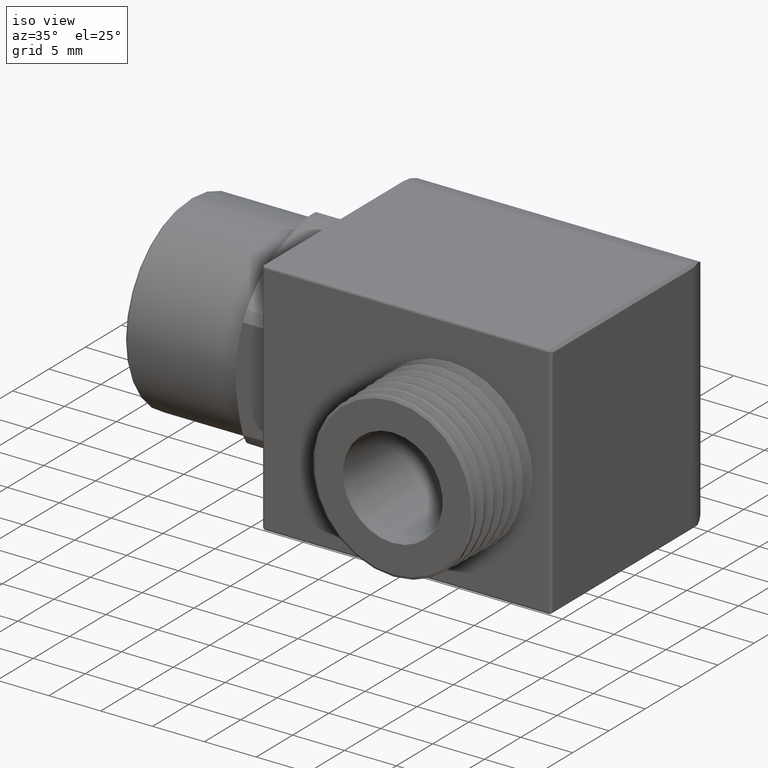
[diagram: clean part render]
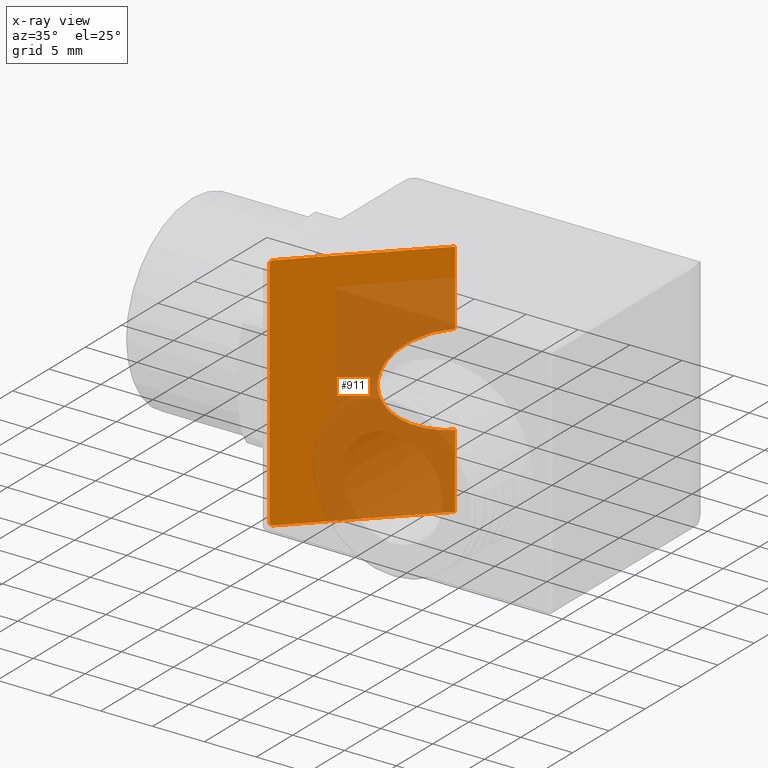
[diagram: x-ray — body ghosted, one internal face saturated and labeled with its STEP entity id]
A machine part, iso view, then the same camera in x-ray: the body is ghosted and one INTERNAL B-rep face — a face not visible from any outside direction — is saturated and labeled: STEP entity #911.
In plain terms, the highlighted planar face has unit normal (-0.7071, 0.7071, 0).
Its self-contained STEP definition (entity closure, byte-faithful):
#760 = VERTEX_POINT ( 'NONE', #2486 ) ;
#770 = EDGE_CURVE ( 'NONE', #771, #760, #2518, .T. ) ;
#771 = VERTEX_POINT ( 'NONE', #2520 ) ;
#911 = ADVANCED_FACE ( 'NONE', ( #2769 ), #2768, .T. ) ;
#912 = VERTEX_POINT ( 'NONE', #2763 ) ;
#914 = EDGE_CURVE ( 'NONE', #921, #760, #2762, .T. ) ;
#918 = VERTEX_POINT ( 'NONE', #2809 ) ;
#920 = EDGE_CURVE ( 'NONE', #964, #918, #2804, .T. ) ;
#921 = VERTEX_POINT ( 'NONE', #2800 ) ;
#922 = ORIENTED_EDGE ( 'NONE', *, *, #914, .F. ) ;
#923 = ORIENTED_EDGE ( 'NONE', *, *, #770, .T. ) ;
#924 = VERTEX_POINT ( 'NONE', #2799 ) ;
#925 = EDGE_CURVE ( 'NONE', #924, #921, #2798, .T. ) ;
#951 = EDGE_LOOP ( 'NONE', ( #986, #923, #922, #953, #959, #963, #970, #954 ) ) ;
#953 = ORIENTED_EDGE ( 'NONE', *, *, #925, .F. ) ;
#954 = ORIENTED_EDGE ( 'NONE', *, *, #955, .T. ) ;
#955 = EDGE_CURVE ( 'NONE', #961, #912, #2862, .T. ) ;
#959 = ORIENTED_EDGE ( 'NONE', *, *, #962, .F. ) ;
#960 = EDGE_CURVE ( 'NONE', #961, #918, #2851, .T. ) ;
#961 = VERTEX_POINT ( 'NONE', #2850 ) ;
#962 = EDGE_CURVE ( 'NONE', #964, #924, #2878, .T. ) ;
#963 = ORIENTED_EDGE ( 'NONE', *, *, #920, .T. ) ;
#964 = VERTEX_POINT ( 'NONE', #2880 ) ;
#965 = EDGE_CURVE ( 'NONE', #771, #912, #2879, .T. ) ;
#970 = ORIENTED_EDGE ( 'NONE', *, *, #960, .F. ) ;
#986 = ORIENTED_EDGE ( 'NONE', *, *, #965, .F. ) ;
#2486 = CARTESIAN_POINT ( 'NONE',  ( 0.1051000000000044700, 0.0000000000000000000, -0.1732500000000000700 ) ) ;
#2514 = CARTESIAN_POINT ( 'NONE',  ( 0.1051000000000044700, 0.0000000000000000000, -0.1732500000000000700 ) ) ;
#2515 = CARTESIAN_POINT ( 'NONE',  ( -0.2413999999999955600, -0.3464999999999999700, -0.1732499999999999600 ) ) ;
#2516 = CARTESIAN_POINT ( 'NONE',  ( -0.2413999999999955600, -0.3464999999999999700, 0.1732500000000000700 ) ) ;
#2517 = CARTESIAN_POINT ( 'NONE',  ( 0.1051000000000044700, 0.0000000000000000000, 0.1732499999999999900 ) ) ;
#2518 =( BOUNDED_CURVE ( )  B_SPLINE_CURVE ( 3, ( #2517, #2516, #2515, #2514 ),
 .UNSPECIFIED., .F., .T. ) 
 B_SPLINE_CURVE_WITH_KNOTS ( ( 4, 4 ),
 ( 4.712388980384689700, 7.853981633974482800 ),
 .UNSPECIFIED. ) 
 CURVE ( )  GEOMETRIC_REPRESENTATION_ITEM ( )  RATIONAL_B_SPLINE_CURVE ( ( 1.000000000000000000, 0.3333333333333333100, 0.3333333333333333100, 1.000000000000000000 ) ) 
 REPRESENTATION_ITEM ( '' )  );
#2520 = CARTESIAN_POINT ( 'NONE',  ( 0.1051000000000044700, 0.0000000000000000000, 0.1732499999999999900 ) ) ;
#2759 = DIRECTION ( 'NONE',  ( 0.0000000000000000000, 0.0000000000000000000, 1.000000000000000000 ) ) ;
#2760 = VECTOR ( 'NONE', #2759, 39.37007874015748100 ) ;
#2761 = CARTESIAN_POINT ( 'NONE',  ( 0.1051000000000044700, 0.0000000000000000000, -0.4553937007874016000 ) ) ;
#2762 = LINE ( 'NONE', #2761, #2760 ) ;
#2763 = CARTESIAN_POINT ( 'NONE',  ( 0.1051000000000045000, 6.829619984160658000E-017, 0.4550000000000000200 ) ) ;
#2764 = DIRECTION ( 'NONE',  ( -0.7071067811865474600, -0.7071067811865474600, 0.0000000000000000000 ) ) ;
#2765 = DIRECTION ( 'NONE',  ( -0.7071067811865475700, 0.7071067811865475700, 0.0000000000000000000 ) ) ;
#2766 = CARTESIAN_POINT ( 'NONE',  ( 0.1051000000000044700, 0.0000000000000000000, -0.4553937007874016000 ) ) ;
#2767 = AXIS2_PLACEMENT_3D ( 'NONE', #2766, #2765, #2764 ) ;
#2768 = PLANE ( 'NONE',  #2767 ) ;
#2769 = FACE_OUTER_BOUND ( 'NONE', #951, .T. ) ;
#2795 = DIRECTION ( 'NONE',  ( 0.7071067811865474600, 0.7071067811865474600, 0.0000000000000000000 ) ) ;
#2796 = VECTOR ( 'NONE', #2795, 39.37007874015748900 ) ;
#2797 = CARTESIAN_POINT ( 'NONE',  ( 0.6251333333333355400, 0.5200333333333311300, -0.4550000000000000200 ) ) ;
#2798 = LINE ( 'NONE', #2797, #2796 ) ;
#2799 = CARTESIAN_POINT ( 'NONE',  ( -0.2998999999999999400, -0.4050000000000044100, -0.4550000000000000200 ) ) ;
#2800 = CARTESIAN_POINT ( 'NONE',  ( 0.1051000000000045000, 6.829619984160658000E-017, -0.4550000000000000200 ) ) ;
#2801 = DIRECTION ( 'NONE',  ( 0.0000000000000000000, 0.0000000000000000000, 1.000000000000000000 ) ) ;
#2802 = VECTOR ( 'NONE', #2801, 39.37007874015748100 ) ;
#2803 = CARTESIAN_POINT ( 'NONE',  ( -0.3098999999999999500, -0.4150000000000044800, 0.4550000000000000200 ) ) ;
#2804 = LINE ( 'NONE', #2803, #2802 ) ;
#2809 = CARTESIAN_POINT ( 'NONE',  ( -0.3098999999999999500, -0.4150000000000043700, 0.4449999999999999500 ) ) ;
#2846 = CARTESIAN_POINT ( 'NONE',  ( -0.3098999999999999500, -0.4150000000000043700, 0.4449999999999999500 ) ) ;
#2847 = CARTESIAN_POINT ( 'NONE',  ( -0.3099000000000000100, -0.4150000000000044800, 0.4508578643762690100 ) ) ;
#2848 = CARTESIAN_POINT ( 'NONE',  ( -0.3057578643762690600, -0.4108578643762734700, 0.4549999999999999600 ) ) ;
#2849 = CARTESIAN_POINT ( 'NONE',  ( -0.2999000000000000000, -0.4050000000000044100, 0.4550000000000000200 ) ) ;
#2850 = CARTESIAN_POINT ( 'NONE',  ( -0.2999000000000000000, -0.4050000000000044100, 0.4550000000000000200 ) ) ;
#2851 =( BOUNDED_CURVE ( )  B_SPLINE_CURVE ( 3, ( #2849, #2848, #2847, #2846 ),
 .UNSPECIFIED., .F., .T. ) 
 B_SPLINE_CURVE_WITH_KNOTS ( ( 4, 4 ),
 ( 4.712388980384689700, 6.283185307179586200 ),
 .UNSPECIFIED. ) 
 CURVE ( )  GEOMETRIC_REPRESENTATION_ITEM ( )  RATIONAL_B_SPLINE_CURVE ( ( 1.000000000000000000, 0.8047378541243649400, 0.8047378541243649400, 1.000000000000000000 ) ) 
 REPRESENTATION_ITEM ( '' )  );
#2859 = DIRECTION ( 'NONE',  ( 0.7071067811865474600, 0.7071067811865474600, 0.0000000000000000000 ) ) ;
#2860 = VECTOR ( 'NONE', #2859, 39.37007874015748900 ) ;
#2861 = CARTESIAN_POINT ( 'NONE',  ( 0.6251333333333355400, 0.5200333333333311300, 0.4550000000000000200 ) ) ;
#2862 = LINE ( 'NONE', #2861, #2860 ) ;
#2871 = DIRECTION ( 'NONE',  ( 0.0000000000000000000, 0.0000000000000000000, 1.000000000000000000 ) ) ;
#2872 = VECTOR ( 'NONE', #2871, 39.37007874015748100 ) ;
#2873 = CARTESIAN_POINT ( 'NONE',  ( 0.1051000000000044700, 0.0000000000000000000, -0.4553937007874016000 ) ) ;
#2874 = CARTESIAN_POINT ( 'NONE',  ( -0.2998999999999999400, -0.4050000000000044100, -0.4550000000000000200 ) ) ;
#2875 = CARTESIAN_POINT ( 'NONE',  ( -0.3057578643762690100, -0.4108578643762734700, -0.4549999999999999600 ) ) ;
#2876 = CARTESIAN_POINT ( 'NONE',  ( -0.3098999999999999500, -0.4150000000000044800, -0.4508578643762690100 ) ) ;
#2877 = CARTESIAN_POINT ( 'NONE',  ( -0.3098999999999999500, -0.4150000000000044800, -0.4449999999999999500 ) ) ;
#2878 =( BOUNDED_CURVE ( )  B_SPLINE_CURVE ( 3, ( #2877, #2876, #2875, #2874 ),
 .UNSPECIFIED., .F., .T. ) 
 B_SPLINE_CURVE_WITH_KNOTS ( ( 4, 4 ),
 ( 3.141592653589793100, 4.712388980384689700 ),
 .UNSPECIFIED. ) 
 CURVE ( )  GEOMETRIC_REPRESENTATION_ITEM ( )  RATIONAL_B_SPLINE_CURVE ( ( 1.000000000000000000, 0.8047378541243649400, 0.8047378541243649400, 1.000000000000000000 ) ) 
 REPRESENTATION_ITEM ( '' )  );
#2879 = LINE ( 'NONE', #2873, #2872 ) ;
#2880 = CARTESIAN_POINT ( 'NONE',  ( -0.3098999999999999500, -0.4150000000000044800, -0.4449999999999999500 ) ) ;